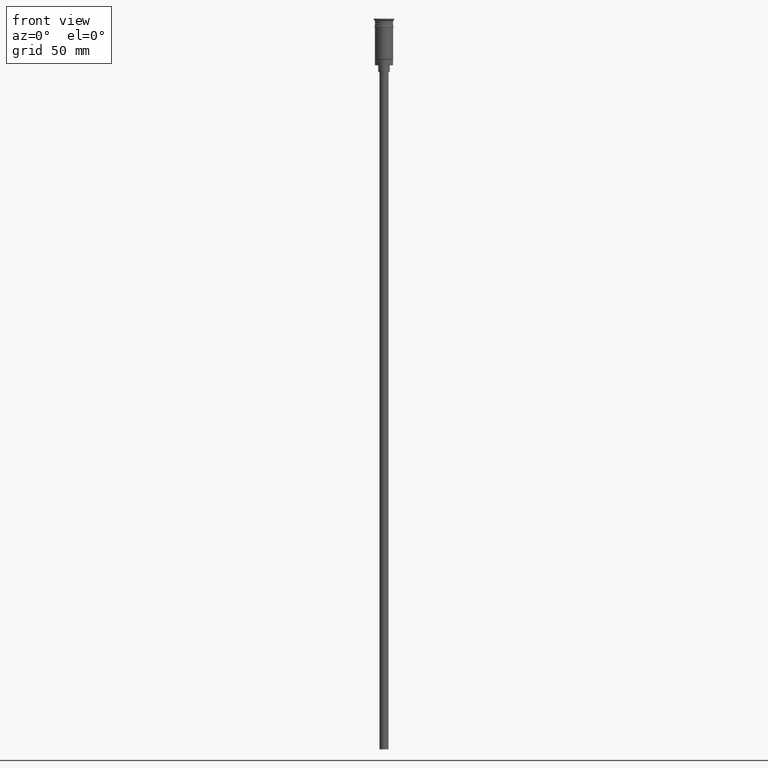
[diagram: clean part render]
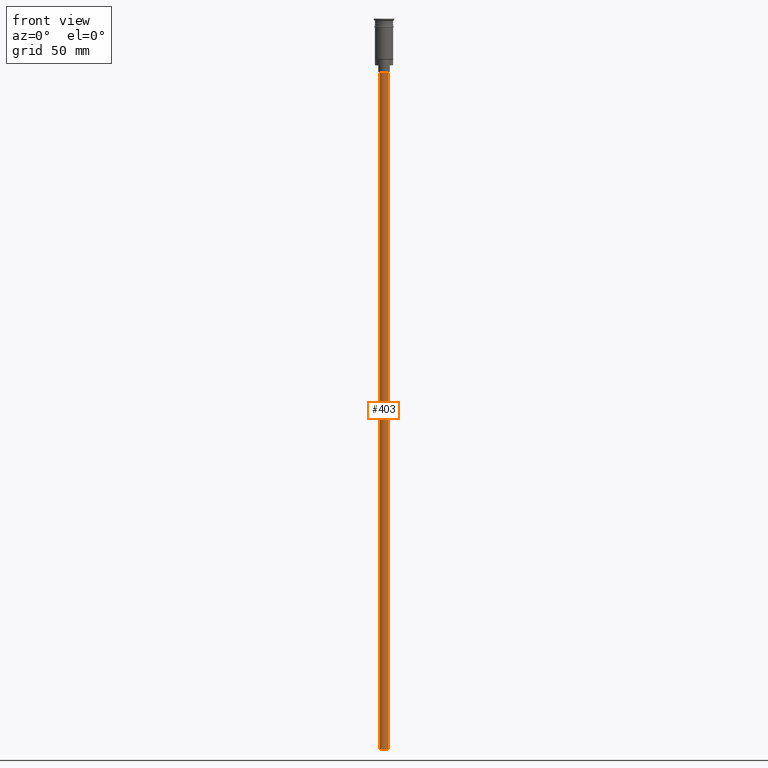
[diagram: same view with one face highlighted and labeled with its STEP entity id]
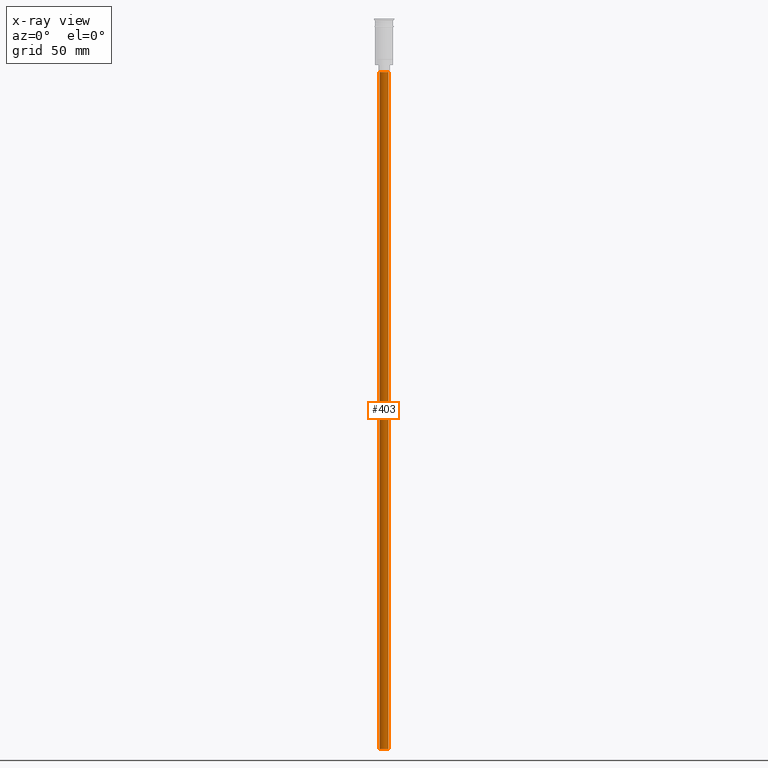
[diagram: x-ray of the same camera — body ghosted, the highlighted face saturated]
A machine part, front view. The second image highlights one B-rep face of the part: STEP entity #403.
The next image is the same camera in x-ray: the body ghosted, the highlighted face saturated — about 0% of this face is hidden behind the body in this view.
In plain terms, the highlighted cylindrical surface (edge-blend (fillet) strip) has radius 2 mm, axis along (-0, -0, 1).
Its self-contained STEP definition (entity closure, byte-faithful):
#11 = ORIENTED_EDGE ( 'NONE', *, *, #1336, .T. ) ;
#18 = DIRECTION ( 'NONE',  ( -1.000000000000000000, 0.000000000000000000, 0.000000000000000000 ) ) ;
#38 = DIRECTION ( 'NONE',  ( -0.000000000000000000, -0.000000000000000000, 1.000000000000000000 ) ) ;
#50 = AXIS2_PLACEMENT_3D ( 'NONE', #1505, #1497, #18 ) ;
#222 = CIRCLE ( 'NONE', #50, 2.000000000000000000 ) ;
#287 = CARTESIAN_POINT ( 'NONE',  ( 0.000000000000000000, 0.000000000000000000, -320.5000000000000000 ) ) ;
#315 = EDGE_CURVE ( 'NONE', #481, #1462, #534, .T. ) ;
#403 = ADVANCED_FACE ( 'NONE', ( #1034 ), #1396, .T. ) ;
#415 = VECTOR ( 'NONE', #657, 1000.000000000000000 ) ;
#481 = VERTEX_POINT ( 'NONE', #1184 ) ;
#534 = LINE ( 'NONE', #1270, #415 ) ;
#657 = DIRECTION ( 'NONE',  ( -0.000000000000000000, -0.000000000000000000, 1.000000000000000000 ) ) ;
#663 = DIRECTION ( 'NONE',  ( 0.000000000000000000, 0.000000000000000000, -1.000000000000000000 ) ) ;
#698 = ORIENTED_EDGE ( 'NONE', *, *, #762, .F. ) ;
#762 = EDGE_CURVE ( 'NONE', #1305, #481, #1427, .T. ) ;
#782 = DIRECTION ( 'NONE',  ( 1.000000000000000000, 0.000000000000000000, 0.000000000000000000 ) ) ;
#969 = ORIENTED_EDGE ( 'NONE', *, *, #315, .F. ) ;
#1031 = VERTEX_POINT ( 'NONE', #1112 ) ;
#1034 = FACE_OUTER_BOUND ( 'NONE', #1253, .T. ) ;
#1039 = CARTESIAN_POINT ( 'NONE',  ( 0.000000000000000000, 0.000000000000000000, -320.5000000000000000 ) ) ;
#1112 = CARTESIAN_POINT ( 'NONE',  ( 2.000000000000000000, 0.000000000000000000, -23.49999999999999645 ) ) ;
#1119 = DIRECTION ( 'NONE',  ( -0.000000000000000000, -0.000000000000000000, 1.000000000000000000 ) ) ;
#1166 = ORIENTED_EDGE ( 'NONE', *, *, #1432, .T. ) ;
#1184 = CARTESIAN_POINT ( 'NONE',  ( -2.000000000000000000, 2.449293598294706414E-16, -320.5000000000000000 ) ) ;
#1221 = LINE ( 'NONE', #1585, #1429 ) ;
#1229 = CARTESIAN_POINT ( 'NONE',  ( -2.000000000000000000, 2.449293598294706414E-16, -23.49999999999999645 ) ) ;
#1253 = EDGE_LOOP ( 'NONE', ( #969, #698, #11, #1166 ) ) ;
#1259 = AXIS2_PLACEMENT_3D ( 'NONE', #1039, #663, #1375 ) ;
#1270 = CARTESIAN_POINT ( 'NONE',  ( -2.000000000000000000, 2.449293598294706414E-16, -320.5000000000000000 ) ) ;
#1305 = VERTEX_POINT ( 'NONE', #1444 ) ;
#1336 = EDGE_CURVE ( 'NONE', #1305, #1031, #1221, .T. ) ;
#1375 = DIRECTION ( 'NONE',  ( -1.000000000000000000, 0.000000000000000000, 0.000000000000000000 ) ) ;
#1396 = CYLINDRICAL_SURFACE ( 'NONE', #1567, 2.000000000000000000 ) ;
#1427 = CIRCLE ( 'NONE', #1259, 2.000000000000000000 ) ;
#1429 = VECTOR ( 'NONE', #1119, 1000.000000000000000 ) ;
#1432 = EDGE_CURVE ( 'NONE', #1031, #1462, #222, .T. ) ;
#1444 = CARTESIAN_POINT ( 'NONE',  ( 2.000000000000000000, 0.000000000000000000, -320.5000000000000000 ) ) ;
#1462 = VERTEX_POINT ( 'NONE', #1229 ) ;
#1497 = DIRECTION ( 'NONE',  ( 0.000000000000000000, 0.000000000000000000, -1.000000000000000000 ) ) ;
#1505 = CARTESIAN_POINT ( 'NONE',  ( 0.000000000000000000, 0.000000000000000000, -23.49999999999999645 ) ) ;
#1567 = AXIS2_PLACEMENT_3D ( 'NONE', #287, #38, #782 ) ;
#1585 = CARTESIAN_POINT ( 'NONE',  ( 2.000000000000000000, 0.000000000000000000, -320.5000000000000000 ) ) ;